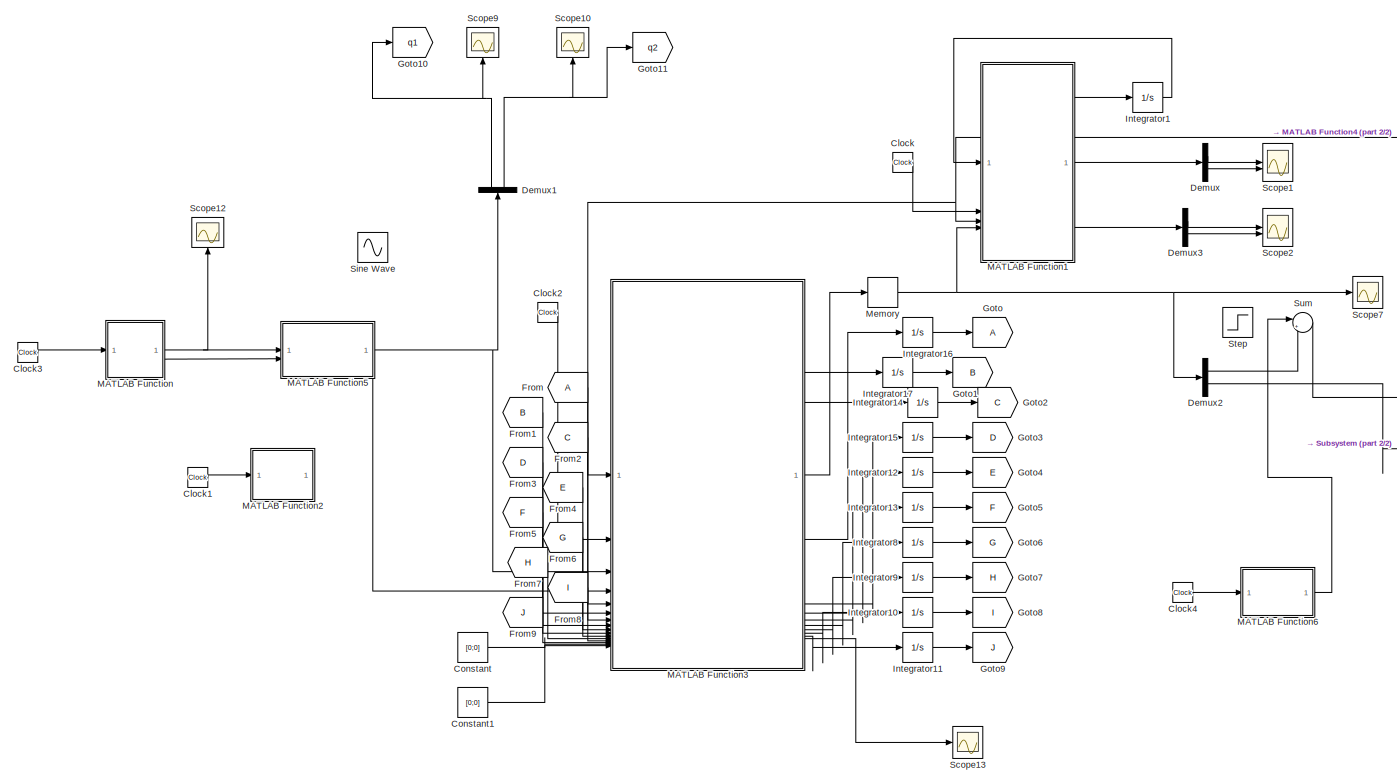
[diagram: root canvas - part 1/2, left side, full height]
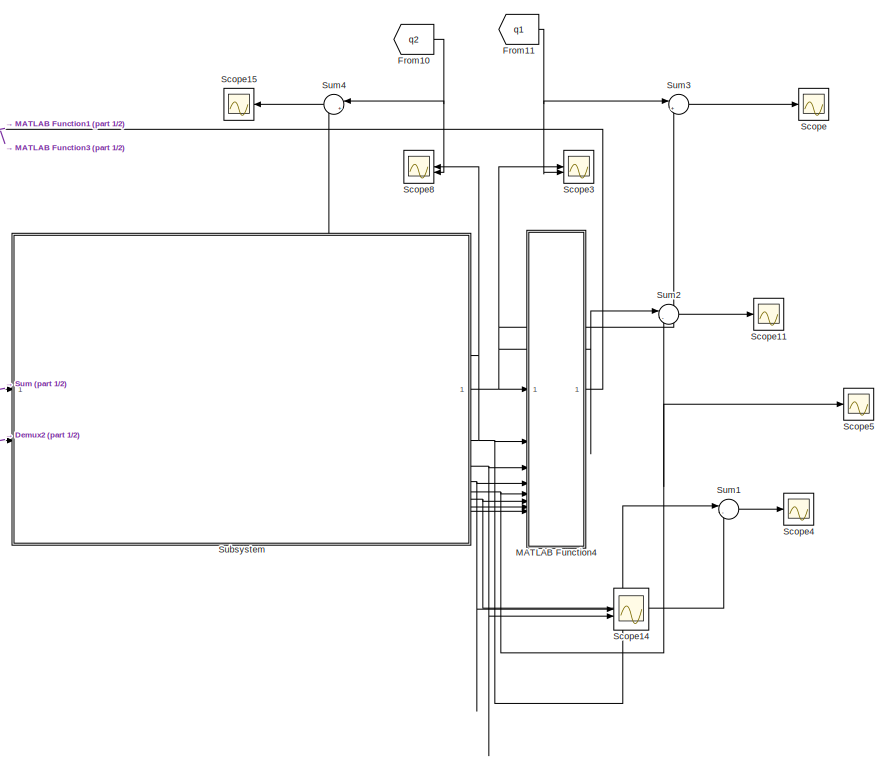
[diagram: root canvas - part 2/2, right side, full height]
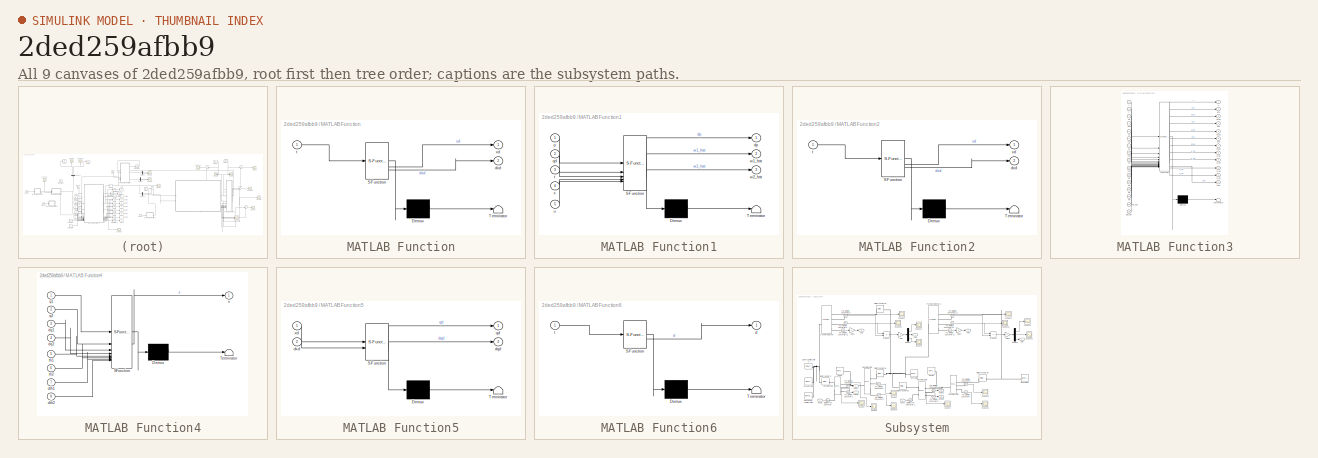
[diagram: thumbnail index - all 9 canvases of the model, root first then tree order]
MODEL slx_2ded259afbb9
KIND model
CONFIG AbsTol = auto
CONFIG EnableMultiTasking = off
CONFIG FixedStep = 1e-5
CONFIG MaxStep = 1e-4
CONFIG MinStep = auto
CONFIG RelTol = 1e-3
CONFIG SampleTimeConstraint = Unconstrained
CONFIG SolverName = ode45
CONFIG StartTime = 0.0
CONFIG StopTime = 10
BLOCK [Clock] Clock
BLOCK [Clock] Clock1
BLOCK [Clock] Clock2
BLOCK [Clock] Clock3
BLOCK [Clock] Clock4
BLOCK [Constant] Constant
  Value = [0;0]
BLOCK [Constant] Constant1
  Value = [0;0]
BLOCK [Demux] Demux
  Outputs = 2
BLOCK [Demux] Demux1
  NameLocation = right
  Outputs = 2
BLOCK [Demux] Demux2
  Outputs = 2
BLOCK [Demux] Demux3
  Outputs = 2
BLOCK [From] From
BLOCK [From] From1
  GotoTag = B
BLOCK [From] From10
  GotoTag = q2
BLOCK [From] From11
  GotoTag = q1
BLOCK [From] From2
  GotoTag = C
BLOCK [From] From3
  GotoTag = D
BLOCK [From] From4
  GotoTag = E
BLOCK [From] From5
  GotoTag = F
BLOCK [From] From6
  GotoTag = G
BLOCK [From] From7
  GotoTag = H
BLOCK [From] From8
  GotoTag = I
BLOCK [From] From9
  GotoTag = J
BLOCK [Goto] Goto
BLOCK [Goto] Goto1
  GotoTag = B
BLOCK [Goto] Goto10
  GotoTag = q1
BLOCK [Goto] Goto11
  GotoTag = q2
BLOCK [Goto] Goto2
  GotoTag = C
BLOCK [Goto] Goto3
  GotoTag = D
BLOCK [Goto] Goto4
  GotoTag = E
BLOCK [Goto] Goto5
  GotoTag = F
BLOCK [Goto] Goto6
  GotoTag = G
BLOCK [Goto] Goto7
  GotoTag = H
BLOCK [Goto] Goto8
  GotoTag = I
BLOCK [Goto] Goto9
  GotoTag = J
BLOCK [Integrator] Integrator1
  InitialCondition = [0; 0; 0; 0]
BLOCK [Integrator] Integrator10
  InitialCondition = [0; 0]
BLOCK [Integrator] Integrator11
  InitialCondition = [0; 0]
BLOCK [Integrator] Integrator12
  InitialCondition = [18.5625;135.5175]
BLOCK [Integrator] Integrator13
  InitialCondition = [0; 0]
BLOCK [Integrator] Integrator14
  InitialCondition = [0; 0]
BLOCK [Integrator] Integrator15
  InitialCondition = [0; 0]
BLOCK [Integrator] Integrator16
  InitialCondition = [0; 0]
BLOCK [Integrator] Integrator17
  InitialCondition = [0; 0]
BLOCK [Integrator] Integrator8
  InitialCondition = [0; 0]
BLOCK [Integrator] Integrator9
  InitialCondition = [0; 0]
BLOCK [SubSystem] MATLAB Function
  ErrorFcn = Stateflow.Translate.translate
  PermitHierarchicalResolution = ExplicitOnly
  SFBlockType = MATLAB Function
  TreatAsAtomicUnit = on
BLOCK [Demux] MATLAB Function/ Demux 
  Outputs = 1
BLOCK [S-Function] MATLAB Function/ SFunction 
  EnableBusSupport = on
  FunctionName = sf_sfun
  PortCounts = [1 3]
  SFcnIsStateOwnerBlock = off
  SFunctionDeploymentMode = off
  Tag = Stateflow S-Function 2
BLOCK [Terminator] MATLAB Function/ Terminator 
BLOCK [Outport] MATLAB Function/dxd
  Port = 2
BLOCK [Inport] MATLAB Function/t
BLOCK [Outport] MATLAB Function/xd
BLOCK [SubSystem] MATLAB Function1
  ErrorFcn = Stateflow.Translate.translate
  PermitHierarchicalResolution = ExplicitOnly
  SFBlockType = MATLAB Function
  TreatAsAtomicUnit = on
BLOCK [Demux] MATLAB Function1/ Demux 
  Outputs = 1
BLOCK [S-Function] MATLAB Function1/ SFunction 
  EnableBusSupport = on
  FunctionName = sf_sfun
  PortCounts = [5 4]
  SFcnIsStateOwnerBlock = off
  SFunctionDeploymentMode = off
  Tag = Stateflow S-Function 1
BLOCK [Terminator] MATLAB Function1/ Terminator 
BLOCK [Outport] MATLAB Function1/dp
BLOCK [Inport] MATLAB Function1/p
BLOCK [Inport] MATLAB Function1/qd
  Port = 2
BLOCK [Inport] MATLAB Function1/t
  Port = 3
BLOCK [Inport] MATLAB Function1/u
  Port = 5
BLOCK [Outport] MATLAB Function1/w1_hat
  Port = 2
BLOCK [Outport] MATLAB Function1/w2_hat
  Port = 3
BLOCK [Inport] MATLAB Function1/x
  Port = 4
BLOCK [SubSystem] MATLAB Function2
  ErrorFcn = Stateflow.Translate.translate
  PermitHierarchicalResolution = ExplicitOnly
  SFBlockType = MATLAB Function
  TreatAsAtomicUnit = on
BLOCK [Demux] MATLAB Function2/ Demux 
  Outputs = 1
BLOCK [S-Function] MATLAB Function2/ SFunction 
  EnableBusSupport = on
  FunctionName = sf_sfun
  PortCounts = [1 3]
  SFcnIsStateOwnerBlock = off
  SFunctionDeploymentMode = off
  Tag = Stateflow S-Function 3
BLOCK [Terminator] MATLAB Function2/ Terminator 
BLOCK [Outport] MATLAB Function2/dxd
  Port = 2
BLOCK [Inport] MATLAB Function2/t
BLOCK [Outport] MATLAB Function2/xd
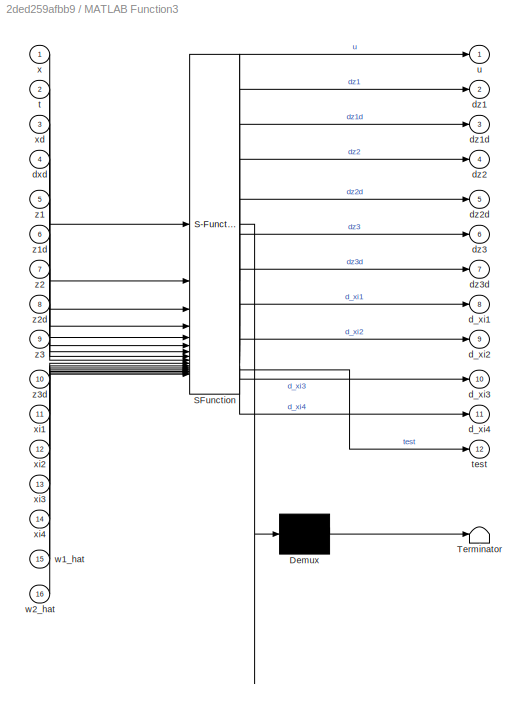
BLOCK [SubSystem] MATLAB Function3
  ErrorFcn = Stateflow.Translate.translate
  PermitHierarchicalResolution = ExplicitOnly
  SFBlockType = MATLAB Function
  TreatAsAtomicUnit = on
BLOCK [Demux] MATLAB Function3/ Demux 
  Outputs = 1
BLOCK [S-Function] MATLAB Function3/ SFunction 
  EnableBusSupport = on
  FunctionName = sf_sfun
  PortCounts = [16 13]
  SFcnIsStateOwnerBlock = off
  SFunctionDeploymentMode = off
  Tag = Stateflow S-Function 4
BLOCK [Terminator] MATLAB Function3/ Terminator 
BLOCK [Outport] MATLAB Function3/d_xi1
  Port = 8
BLOCK [Outport] MATLAB Function3/d_xi2
  Port = 9
BLOCK [Outport] MATLAB Function3/d_xi3
  Port = 10
BLOCK [Outport] MATLAB Function3/d_xi4
  Port = 11
BLOCK [Inport] MATLAB Function3/dxd
  Port = 4
BLOCK [Outport] MATLAB Function3/dz1
  Port = 2
BLOCK [Outport] MATLAB Function3/dz1d
  Port = 3
BLOCK [Outport] MATLAB Function3/dz2
  Port = 4
BLOCK [Outport] MATLAB Function3/dz2d
  Port = 5
BLOCK [Outport] MATLAB Function3/dz3
  Port = 6
BLOCK [Outport] MATLAB Function3/dz3d
  Port = 7
BLOCK [Inport] MATLAB Function3/t
  Port = 2
BLOCK [Outport] MATLAB Function3/test
  Port = 12
BLOCK [Outport] MATLAB Function3/u
BLOCK [Inport] MATLAB Function3/w1_hat
  Port = 15
BLOCK [Inport] MATLAB Function3/w2_hat
  Port = 16
BLOCK [Inport] MATLAB Function3/x
BLOCK [Inport] MATLAB Function3/xd
  Port = 3
BLOCK [Inport] MATLAB Function3/xi1
  Port = 11
BLOCK [Inport] MATLAB Function3/xi2
  Port = 12
BLOCK [Inport] MATLAB Function3/xi3
  Port = 13
BLOCK [Inport] MATLAB Function3/xi4
  Port = 14
BLOCK [Inport] MATLAB Function3/z1
  Port = 5
BLOCK [Inport] MATLAB Function3/z1d
  Port = 6
BLOCK [Inport] MATLAB Function3/z2
  Port = 7
BLOCK [Inport] MATLAB Function3/z2d
  Port = 8
BLOCK [Inport] MATLAB Function3/z3
  Port = 9
BLOCK [Inport] MATLAB Function3/z3d
  Port = 10
BLOCK [SubSystem] MATLAB Function4
  ErrorFcn = Stateflow.Translate.translate
  PermitHierarchicalResolution = ExplicitOnly
  SFBlockType = MATLAB Function
  TreatAsAtomicUnit = on
BLOCK [Demux] MATLAB Function4/ Demux 
  Outputs = 1
BLOCK [S-Function] MATLAB Function4/ SFunction 
  EnableBusSupport = on
  FunctionName = sf_sfun
  PortCounts = [8 2]
  SFcnIsStateOwnerBlock = off
  SFunctionDeploymentMode = off
  Tag = Stateflow S-Function 5
BLOCK [Terminator] MATLAB Function4/ Terminator 
BLOCK [Inport] MATLAB Function4/dq1
  Port = 3
BLOCK [Inport] MATLAB Function4/dq2
  Port = 4
BLOCK [Inport] MATLAB Function4/dth1
  Port = 7
BLOCK [Inport] MATLAB Function4/dth2
  Port = 8
BLOCK [Inport] MATLAB Function4/q1
BLOCK [Inport] MATLAB Function4/q2
  Port = 2
BLOCK [Inport] MATLAB Function4/th1
  Port = 5
BLOCK [Inport] MATLAB Function4/th2
  Port = 6
BLOCK [Outport] MATLAB Function4/x
BLOCK [SubSystem] MATLAB Function5
  ErrorFcn = Stateflow.Translate.translate
  PermitHierarchicalResolution = ExplicitOnly
  SFBlockType = MATLAB Function
  TreatAsAtomicUnit = on
BLOCK [Demux] MATLAB Function5/ Demux 
  Outputs = 1
BLOCK [S-Function] MATLAB Function5/ SFunction 
  EnableBusSupport = on
  FunctionName = sf_sfun
  PortCounts = [2 3]
  SFcnIsStateOwnerBlock = off
  SFunctionDeploymentMode = off
  Tag = Stateflow S-Function 6
BLOCK [Terminator] MATLAB Function5/ Terminator 
BLOCK [Outport] MATLAB Function5/dqd
  Port = 2
BLOCK [Inport] MATLAB Function5/dxd
  Port = 2
BLOCK [Outport] MATLAB Function5/qd
BLOCK [Inport] MATLAB Function5/xd
BLOCK [SubSystem] MATLAB Function6
  ErrorFcn = Stateflow.Translate.translate
  PermitHierarchicalResolution = ExplicitOnly
  SFBlockType = MATLAB Function
  TreatAsAtomicUnit = on
BLOCK [Demux] MATLAB Function6/ Demux 
  Outputs = 1
BLOCK [S-Function] MATLAB Function6/ SFunction 
  EnableBusSupport = on
  FunctionName = sf_sfun
  PortCounts = [1 2]
  SFcnIsStateOwnerBlock = off
  SFunctionDeploymentMode = off
  Tag = Stateflow S-Function 7
BLOCK [Terminator] MATLAB Function6/ Terminator 
BLOCK [Outport] MATLAB Function6/d
BLOCK [Inport] MATLAB Function6/t
BLOCK [Memory] Memory
BLOCK [Scope] Scope
  Floating = off
  NumInputPorts = 1
  ScopeSpecificationString = Simulink.scopes.TimeScopeBlockCfg('CurrentConfiguration', extmgr.ConfigurationSet(extmgr.Configuration('Core','General UI',true),extmgr.Configuration('Core','Source UI',true),extmgr.Configuration('Sources','WiredSimulink',true,'DataLoggingVariableName','best','DataLogging',true,'DataLoggingSaveFormat','StructureWithTime'),extmgr.Configuration('Visuals','Time Domain',true,'SerializedDisplays',{stru...<+1621ch>
BLOCK [Scope] Scope1
  Floating = off
  NumInputPorts = 2
  ScopeSpecificationString = Simulink.scopes.TimeScopeBlockCfg('CurrentConfiguration', extmgr.ConfigurationSet(extmgr.Configuration('Core','General UI',true),extmgr.Configuration('Core','Source UI',true),extmgr.Configuration('Sources','WiredSimulink',true,'DataLoggingVariableName','ScopeData6'),extmgr.Configuration('Visuals','Time Domain',true,'SerializedDisplays',{struct('MinYLimReal','-94.07248','MaxYLimReal','99.78454','YL...<+1583ch>
BLOCK [Scope] Scope10
  Floating = off
  NameLocation = right
  NumInputPorts = 1
  ScopeSpecificationString = Simulink.scopes.TimeScopeBlockCfg('CurrentConfiguration', extmgr.ConfigurationSet(extmgr.Configuration('Core','General UI',true),extmgr.Configuration('Core','Source UI',true),extmgr.Configuration('Sources','WiredSimulink',true,'DataLoggingVariableName','ScopeData4'),extmgr.Configuration('Visuals','Time Domain',true,'SerializedDisplays',{struct('MinYLimReal','-0.88374','MaxYLimReal','1.27164','YLab...<+1555ch>
BLOCK [Scope] Scope11
  Floating = off
  NumInputPorts = 1
  ScopeSpecificationString = Simulink.scopes.TimeScopeBlockCfg('CurrentConfiguration', extmgr.ConfigurationSet(extmgr.Configuration('Core','General UI',true),extmgr.Configuration('Core','Source UI',true),extmgr.Configuration('Sources','WiredSimulink',true,'DataLoggingVariableName','ScopeData5'),extmgr.Configuration('Visuals','Time Domain',true,'SerializedDisplays',{struct('MinYLimReal','-619.12287','MaxYLimReal','665.49509','...<+1552ch>
BLOCK [Scope] Scope12
  Floating = off
  NameLocation = right
  NumInputPorts = 1
  ScopeSpecificationString = Simulink.scopes.TimeScopeBlockCfg('CurrentConfiguration', extmgr.ConfigurationSet(extmgr.Configuration('Core','General UI',true),extmgr.Configuration('Core','Source UI',true),extmgr.Configuration('Sources','WiredSimulink',true,'DataLoggingVariableName','ScopeData4'),extmgr.Configuration('Visuals','Time Domain',true,'SerializedDisplays',{struct('MinYLimReal','-0.375','MaxYLimReal','3.375','YLabelRe...<+1578ch>
BLOCK [Scope] Scope13
  Floating = off
  NumInputPorts = 1
  ScopeSpecificationString = Simulink.scopes.TimeScopeBlockCfg('CurrentConfiguration', extmgr.ConfigurationSet(extmgr.Configuration('Core','General UI',true),extmgr.Configuration('Core','Source UI',true),extmgr.Configuration('Sources','WiredSimulink',true,'DataLoggingVariableName','ScopeData5'),extmgr.Configuration('Visuals','Time Domain',true,'SerializedDisplays',{struct('MinYLimReal','-74.88973','MaxYLimReal','74.29753','YL...<+1628ch>
BLOCK [Scope] Scope14
  Floating = off
  NumInputPorts = 2
  ScopeSpecificationString = Simulink.scopes.TimeScopeBlockCfg('CurrentConfiguration', extmgr.ConfigurationSet(extmgr.Configuration('Core','General UI',true),extmgr.Configuration('Core','Source UI',true),extmgr.Configuration('Sources','WiredSimulink',true,'DataLoggingVariableName','ScopeData6'),extmgr.Configuration('Visuals','Time Domain',true,'SerializedDisplays',{struct('MinYLimReal','-0.3372','MaxYLimReal','0.50449','YLabe...<+1570ch>
BLOCK [Scope] Scope15
  Floating = off
  NameLocation = top
  NumInputPorts = 1
  ScopeSpecificationString = Simulink.scopes.TimeScopeBlockCfg('CurrentConfiguration', extmgr.ConfigurationSet(extmgr.Configuration('Core','General UI',true),extmgr.Configuration('Core','Source UI',true),extmgr.Configuration('Sources','WiredSimulink',true,'DataLoggingVariableName','best2','DataLogging',true,'DataLoggingSaveFormat','StructureWithTime'),extmgr.Configuration('Visuals','Time Domain',true,'SerializedDisplays',{str...<+1608ch>
BLOCK [Scope] Scope2
  Floating = off
  NumInputPorts = 2
  ScopeSpecificationString = Simulink.scopes.TimeScopeBlockCfg('CurrentConfiguration', extmgr.ConfigurationSet(extmgr.Configuration('Core','General UI',true),extmgr.Configuration('Core','Source UI',true),extmgr.Configuration('Sources','WiredSimulink',true,'DataLoggingVariableName','ScopeData7'),extmgr.Configuration('Visuals','Time Domain',true,'SerializedDisplays',{struct('MinYLimReal','-6451.33234','MaxYLimReal','12529.69531...<+1578ch>
BLOCK [Scope] Scope3
  Floating = off
  NumInputPorts = 2
  ScopeSpecificationString = Simulink.scopes.TimeScopeBlockCfg('CurrentConfiguration', extmgr.ConfigurationSet(extmgr.Configuration('Core','General UI',true),extmgr.Configuration('Core','Source UI',true),extmgr.Configuration('Sources','WiredSimulink',true,'DataLoggingVariableName','ScopeData1'),extmgr.Configuration('Visuals','Time Domain',true,'SerializedDisplays',{struct('MinYLimReal','-1.33339','MaxYLimReal','1.32966','YLab...<+1556ch>
BLOCK [Scope] Scope4
  Floating = off
  NumInputPorts = 1
  ScopeSpecificationString = Simulink.scopes.TimeScopeBlockCfg('CurrentConfiguration', extmgr.ConfigurationSet(extmgr.Configuration('Core','General UI',true),extmgr.Configuration('Core','Source UI',true),extmgr.Configuration('Sources','WiredSimulink',true,'DataLoggingVariableName','ScopeData1'),extmgr.Configuration('Visuals','Time Domain',true,'SerializedDisplays',{struct('MinYLimReal','-0.07716','MaxYLimReal','0.3138','YLabe...<+1547ch>
BLOCK [Scope] Scope5
  Floating = off
  NumInputPorts = 1
  ScopeSpecificationString = Simulink.scopes.TimeScopeBlockCfg('CurrentConfiguration', extmgr.ConfigurationSet(extmgr.Configuration('Core','General UI',true),extmgr.Configuration('Core','Source UI',true),extmgr.Configuration('Sources','WiredSimulink',true,'DataLoggingVariableName','ScopeData2'),extmgr.Configuration('Visuals','Time Domain',true,'SerializedDisplays',{struct('MinYLimReal','-1.15078','MaxYLimReal','1.60416','YLab...<+1558ch>
BLOCK [Scope] Scope7
  Floating = off
  NumInputPorts = 1
  ScopeSpecificationString = Simulink.scopes.TimeScopeBlockCfg('CurrentConfiguration', extmgr.ConfigurationSet(extmgr.Configuration('Core','General UI',true),extmgr.Configuration('Core','Source UI',true),extmgr.Configuration('Sources','WiredSimulink',true,'DataLoggingVariableName','ScopeData8'),extmgr.Configuration('Visuals','Time Domain',true,'SerializedDisplays',{struct('MinYLimReal','-5408.44137','MaxYLimReal','6031.52926'...<+1588ch>
BLOCK [Scope] Scope8
  Floating = off
  NameLocation = top
  NumInputPorts = 2
  ScopeSpecificationString = Simulink.scopes.TimeScopeBlockCfg('CurrentConfiguration', extmgr.ConfigurationSet(extmgr.Configuration('Core','General UI',true),extmgr.Configuration('Core','Source UI',true),extmgr.Configuration('Sources','WiredSimulink',true,'DataLoggingVariableName','ScopeData2'),extmgr.Configuration('Visuals','Time Domain',true,'SerializedDisplays',{struct('MinYLimReal','-0.18996','MaxYLimReal','1.70906','YLab...<+1569ch>
BLOCK [Scope] Scope9
  Floating = off
  NameLocation = right
  NumInputPorts = 1
  ScopeSpecificationString = Simulink.scopes.TimeScopeBlockCfg('CurrentConfiguration', extmgr.ConfigurationSet(extmgr.Configuration('Core','General UI',true),extmgr.Configuration('Core','Source UI',true),extmgr.Configuration('Sources','WiredSimulink',true,'DataLoggingVariableName','ScopeData3'),extmgr.Configuration('Visuals','Time Domain',true,'SerializedDisplays',{struct('MinYLimReal','-1.25','MaxYLimReal','1.25','YLabelReal...<+1524ch>
BLOCK [Sin] Sine Wave
  Amplitude = 5
  Frequency = 100
  SampleTime = 0
BLOCK [Step] Step
  After = 5
  SampleTime = 0
  Time = 0
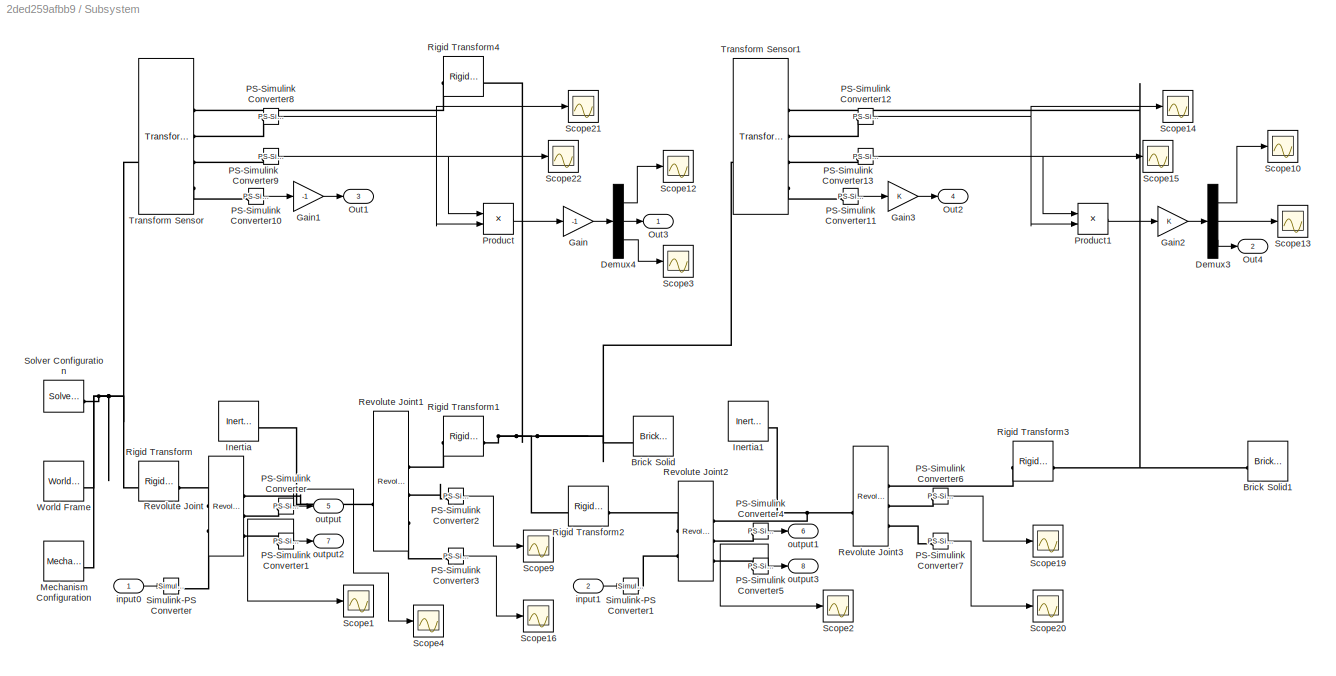
BLOCK [SubSystem] Subsystem
BLOCK [Reference] Subsystem/Brick Solid  REF=sm_lib/Body Elements/Brick Solid
  NameLocation = right
  SourceBlock = sm_lib/Body Elements/Brick Solid
  SourceType = Brick Solid
BLOCK [Reference] Subsystem/Brick Solid1  REF=sm_lib/Body Elements/Brick Solid
  NameLocation = right
  SourceBlock = sm_lib/Body Elements/Brick Solid
  SourceType = Brick Solid
BLOCK [Demux] Subsystem/Demux3
  Outputs = 3
BLOCK [Demux] Subsystem/Demux4
  Outputs = 3
BLOCK [Gain] Subsystem/Gain
  Gain = -1
BLOCK [Gain] Subsystem/Gain1
  Gain = -1
BLOCK [Gain] Subsystem/Gain2
BLOCK [Gain] Subsystem/Gain3
BLOCK [Reference] Subsystem/Inertia  REF=sm_lib/Body Elements/Inertia
  SourceBlock = sm_lib/Body Elements/Inertia
  SourceType = Inertia
BLOCK [Reference] Subsystem/Inertia1  REF=sm_lib/Body Elements/Inertia
  SourceBlock = sm_lib/Body Elements/Inertia
  SourceType = Inertia
BLOCK [Reference] Subsystem/Mechanism Configuration  REF=sm_lib/Utilities/Mechanism
Configuration
  SourceBlock = sm_lib/Utilities/Mechanism\nConfiguration
  SourceType = Mechanism\nConfiguration
BLOCK [Outport] Subsystem/Out1
  Port = 3
BLOCK [Outport] Subsystem/Out2
  Port = 4
BLOCK [Outport] Subsystem/Out3
BLOCK [Outport] Subsystem/Out4
  Port = 2
BLOCK [Reference] Subsystem/PS-Simulink Converter  REF=nesl_utility/PS-Simulink
Converter
  SourceBlock = nesl_utility/PS-Simulink\nConverter
  SourceType = PS-Simulink\nConverter
BLOCK [Reference] Subsystem/PS-Simulink Converter1  REF=nesl_utility/PS-Simulink
Converter
  SourceBlock = nesl_utility/PS-Simulink\nConverter
  SourceType = PS-Simulink\nConverter
BLOCK [Reference] Subsystem/PS-Simulink Converter10  REF=nesl_utility/PS-Simulink
Converter
  SourceBlock = nesl_utility/PS-Simulink\nConverter
  SourceType = PS-Simulink\nConverter
BLOCK [Reference] Subsystem/PS-Simulink Converter11  REF=nesl_utility/PS-Simulink
Converter
  SourceBlock = nesl_utility/PS-Simulink\nConverter
  SourceType = PS-Simulink\nConverter
BLOCK [Reference] Subsystem/PS-Simulink Converter12  REF=nesl_utility/PS-Simulink
Converter
  SourceBlock = nesl_utility/PS-Simulink\nConverter
  SourceType = PS-Simulink\nConverter
BLOCK [Reference] Subsystem/PS-Simulink Converter13  REF=nesl_utility/PS-Simulink
Converter
  SourceBlock = nesl_utility/PS-Simulink\nConverter
  SourceType = PS-Simulink\nConverter
BLOCK [Reference] Subsystem/PS-Simulink Converter2  REF=nesl_utility/PS-Simulink
Converter
  SourceBlock = nesl_utility/PS-Simulink\nConverter
  SourceType = PS-Simulink\nConverter
BLOCK [Reference] Subsystem/PS-Simulink Converter3  REF=nesl_utility/PS-Simulink
Converter
  SourceBlock = nesl_utility/PS-Simulink\nConverter
  SourceType = PS-Simulink\nConverter
BLOCK [Reference] Subsystem/PS-Simulink Converter4  REF=nesl_utility/PS-Simulink
Converter
  SourceBlock = nesl_utility/PS-Simulink\nConverter
  SourceType = PS-Simulink\nConverter
BLOCK [Reference] Subsystem/PS-Simulink Converter5  REF=nesl_utility/PS-Simulink
Converter
  SourceBlock = nesl_utility/PS-Simulink\nConverter
  SourceType = PS-Simulink\nConverter
BLOCK [Reference] Subsystem/PS-Simulink Converter6  REF=nesl_utility/PS-Simulink
Converter
  SourceBlock = nesl_utility/PS-Simulink\nConverter
  SourceType = PS-Simulink\nConverter
BLOCK [Reference] Subsystem/PS-Simulink Converter7  REF=nesl_utility/PS-Simulink
Converter
  SourceBlock = nesl_utility/PS-Simulink\nConverter
  SourceType = PS-Simulink\nConverter
BLOCK [Reference] Subsystem/PS-Simulink Converter8  REF=nesl_utility/PS-Simulink
Converter
  SourceBlock = nesl_utility/PS-Simulink\nConverter
  SourceType = PS-Simulink\nConverter
BLOCK [Reference] Subsystem/PS-Simulink Converter9  REF=nesl_utility/PS-Simulink
Converter
  SourceBlock = nesl_utility/PS-Simulink\nConverter
  SourceType = PS-Simulink\nConverter
BLOCK [Product] Subsystem/Product
BLOCK [Product] Subsystem/Product1
BLOCK [Reference] Subsystem/Revolute Joint  REF=sm_lib/Joints/Revolute Joint
  SourceBlock = sm_lib/Joints/Revolute Joint
  SourceType = Revolute Joint
BLOCK [Reference] Subsystem/Revolute Joint1  REF=sm_lib/Joints/Revolute Joint
  SourceBlock = sm_lib/Joints/Revolute Joint
  SourceType = Revolute Joint
BLOCK [Reference] Subsystem/Revolute Joint2  REF=sm_lib/Joints/Revolute Joint
  SourceBlock = sm_lib/Joints/Revolute Joint
  SourceType = Revolute Joint
BLOCK [Reference] Subsystem/Revolute Joint3  REF=sm_lib/Joints/Revolute Joint
  SourceBlock = sm_lib/Joints/Revolute Joint
  SourceType = Revolute Joint
BLOCK [Reference] Subsystem/Rigid Transform  REF=sm_lib/Frames and
Transforms/Rigid
Transform
  SourceBlock = sm_lib/Frames and\nTransforms/Rigid\nTransform
  SourceType = Rigid\nTransform
BLOCK [Reference] Subsystem/Rigid Transform1  REF=sm_lib/Frames and
Transforms/Rigid
Transform
  SourceBlock = sm_lib/Frames and\nTransforms/Rigid\nTransform
  SourceType = Rigid\nTransform
BLOCK [Reference] Subsystem/Rigid Transform2  REF=sm_lib/Frames and
Transforms/Rigid
Transform
  SourceBlock = sm_lib/Frames and\nTransforms/Rigid\nTransform
  SourceType = Rigid\nTransform
BLOCK [Reference] Subsystem/Rigid Transform3  REF=sm_lib/Frames and
Transforms/Rigid
Transform
  SourceBlock = sm_lib/Frames and\nTransforms/Rigid\nTransform
  SourceType = Rigid\nTransform
BLOCK [Reference] Subsystem/Rigid Transform4  REF=sm_lib/Frames and
Transforms/Rigid
Transform
  NameLocation = top
  SourceBlock = sm_lib/Frames and\nTransforms/Rigid\nTransform
  SourceType = Rigid\nTransform
BLOCK [Scope] Subsystem/Scope1
  Floating = off
  NumInputPorts = 1
  ScopeSpecificationString = Simulink.scopes.TimeScopeBlockCfg('CurrentConfiguration', extmgr.ConfigurationSet(extmgr.Configuration('Core','General UI',true),extmgr.Configuration('Core','Source UI',true),extmgr.Configuration('Sources','WiredSimulink',true,'DataLoggingVariableName','ScopeData5'),extmgr.Configuration('Visuals','Time Domain',true,'SerializedDisplays',{struct('MinYLimReal','-56.91703','MaxYLimReal','39.85112','YL...<+1575ch>
BLOCK [Scope] Subsystem/Scope10
  Floating = off
  NumInputPorts = 1
  ScopeSpecificationString = Simulink.scopes.TimeScopeBlockCfg('CurrentConfiguration', extmgr.ConfigurationSet(extmgr.Configuration('Core','General UI',true),extmgr.Configuration('Core','Source UI',true),extmgr.Configuration('Sources','WiredSimulink',true,'DataLoggingVariableName','ScopeData10'),extmgr.Configuration('Visuals','Time Domain',true,'SerializedDisplays',{struct('MinYLimReal','-1.00000','MaxYLimReal','1.00000','YLa...<+1563ch>
BLOCK [Scope] Subsystem/Scope12
  Floating = off
  NumInputPorts = 1
  ScopeSpecificationString = Simulink.scopes.TimeScopeBlockCfg('CurrentConfiguration', extmgr.ConfigurationSet(extmgr.Configuration('Core','General UI',true),extmgr.Configuration('Core','Source UI',true),extmgr.Configuration('Sources','WiredSimulink',true,'DataLoggingVariableName','ScopeData12'),extmgr.Configuration('Visuals','Time Domain',true,'SerializedDisplays',{struct('MinYLimReal','-0.94772','MaxYLimReal','0.10533','YLa...<+1536ch>
BLOCK [Scope] Subsystem/Scope13
  Floating = off
  NumInputPorts = 1
  ScopeSpecificationString = Simulink.scopes.TimeScopeBlockCfg('CurrentConfiguration', extmgr.ConfigurationSet(extmgr.Configuration('Core','General UI',true),extmgr.Configuration('Core','Source UI',true),extmgr.Configuration('Sources','WiredSimulink',true,'DataLoggingVariableName','ScopeData13'),extmgr.Configuration('Visuals','Time Domain',true,'SerializedDisplays',{struct('MinYLimReal','-1.00000','MaxYLimReal','1.00000','YLa...<+1563ch>
BLOCK [Scope] Subsystem/Scope14
  Floating = off
  NumInputPorts = 1
  ScopeSpecificationString = Simulink.scopes.TimeScopeBlockCfg('CurrentConfiguration', extmgr.ConfigurationSet(extmgr.Configuration('Core','General UI',true),extmgr.Configuration('Core','Source UI',true),extmgr.Configuration('Sources','WiredSimulink',true,'DataLoggingVariableName','ScopeData14'),extmgr.Configuration('Visuals','Time Domain',true,'SerializedDisplays',{struct('MinYLimReal','-0.06235','MaxYLimReal','0.56118','YLa...<+1539ch>
BLOCK [Scope] Subsystem/Scope15
  Floating = off
  NumInputPorts = 1
  ScopeSpecificationString = Simulink.scopes.TimeScopeBlockCfg('CurrentConfiguration', extmgr.ConfigurationSet(extmgr.Configuration('Core','General UI',true),extmgr.Configuration('Core','Source UI',true),extmgr.Configuration('Sources','WiredSimulink',true,'DataLoggingVariableName','ScopeData15'),extmgr.Configuration('Visuals','Time Domain',true,'SerializedDisplays',{struct('MinYLimReal','-1.25','MaxYLimReal','1.25','YLabelRea...<+1580ch>
BLOCK [Scope] Subsystem/Scope16
  Floating = off
  NumInputPorts = 1
  ScopeSpecificationString = Simulink.scopes.TimeScopeBlockCfg('CurrentConfiguration', extmgr.ConfigurationSet(extmgr.Configuration('Core','General UI',true),extmgr.Configuration('Core','Source UI',true),extmgr.Configuration('Sources','WiredSimulink',true,'DataLoggingVariableName','ScopeData3'),extmgr.Configuration('Visuals','Time Domain',true,'SerializedDisplays',{struct('MinYLimReal','-44.2935','MaxYLimReal','97.0416','YLab...<+1512ch>
BLOCK [Scope] Subsystem/Scope19
  Floating = off
  NumInputPorts = 1
  ScopeSpecificationString = Simulink.scopes.TimeScopeBlockCfg('CurrentConfiguration', extmgr.ConfigurationSet(extmgr.Configuration('Core','General UI',true),extmgr.Configuration('Core','Source UI',true),extmgr.Configuration('Sources','WiredSimulink',true,'DataLoggingVariableName','ScopeData6'),extmgr.Configuration('Visuals','Time Domain',true,'SerializedDisplays',{struct('MinYLimReal','-0.33392','MaxYLimReal','0.06202','YLab...<+1550ch>
BLOCK [Scope] Subsystem/Scope2
  Floating = off
  NumInputPorts = 1
  ScopeSpecificationString = Simulink.scopes.TimeScopeBlockCfg('CurrentConfiguration', extmgr.ConfigurationSet(extmgr.Configuration('Core','General UI',true),extmgr.Configuration('Core','Source UI',true),extmgr.Configuration('Sources','WiredSimulink',true,'DataLoggingVariableName','ScopeData6'),extmgr.Configuration('Visuals','Time Domain',true,'SerializedDisplays',{struct('MinYLimReal','-33.04325','MaxYLimReal','104.31676','Y...<+1591ch>
BLOCK [Scope] Subsystem/Scope20
  Floating = off
  NumInputPorts = 1
  ScopeSpecificationString = Simulink.scopes.TimeScopeBlockCfg('CurrentConfiguration', extmgr.ConfigurationSet(extmgr.Configuration('Core','General UI',true),extmgr.Configuration('Core','Source UI',true),extmgr.Configuration('Sources','WiredSimulink',true,'DataLoggingVariableName','ScopeData7'),extmgr.Configuration('Visuals','Time Domain',true,'SerializedDisplays',{struct('MinYLimReal','-0.2693','MaxYLimReal','0.24465','YLabe...<+1553ch>
BLOCK [Scope] Subsystem/Scope21
  Floating = off
  NumInputPorts = 1
  ScopeSpecificationString = Simulink.scopes.TimeScopeBlockCfg('CurrentConfiguration', extmgr.ConfigurationSet(extmgr.Configuration('Core','General UI',true),extmgr.Configuration('Core','Source UI',true),extmgr.Configuration('Sources','WiredSimulink',true,'DataLoggingVariableName','ScopeData8'),extmgr.Configuration('Visuals','Time Domain',true,'SerializedDisplays',{struct('MinYLimReal','-0.07233','MaxYLimReal','0.65094','YLab...<+1563ch>
BLOCK [Scope] Subsystem/Scope22
  Floating = off
  NumInputPorts = 1
  ScopeSpecificationString = Simulink.scopes.TimeScopeBlockCfg('CurrentConfiguration', extmgr.ConfigurationSet(extmgr.Configuration('Core','General UI',true),extmgr.Configuration('Core','Source UI',true),extmgr.Configuration('Sources','WiredSimulink',true,'DataLoggingVariableName','ScopeData9'),extmgr.Configuration('Visuals','Time Domain',true,'SerializedDisplays',{struct('MinYLimReal','-1.25','MaxYLimReal','1.25','YLabelReal...<+1588ch>
BLOCK [Scope] Subsystem/Scope3
  Floating = off
  NumInputPorts = 1
  ScopeSpecificationString = Simulink.scopes.TimeScopeBlockCfg('CurrentConfiguration', extmgr.ConfigurationSet(extmgr.Configuration('Core','General UI',true),extmgr.Configuration('Core','Source UI',true),extmgr.Configuration('Sources','WiredSimulink',true,'DataLoggingVariableName','ScopeData11'),extmgr.Configuration('Visuals','Time Domain',true,'SerializedDisplays',{struct('MinYLimReal','-0.94772','MaxYLimReal','0.10533','YLa...<+1536ch>
BLOCK [Scope] Subsystem/Scope4
  Floating = off
  NumInputPorts = 1
  ScopeSpecificationString = Simulink.scopes.TimeScopeBlockCfg('CurrentConfiguration', extmgr.ConfigurationSet(extmgr.Configuration('Core','General UI',true),extmgr.Configuration('Core','Source UI',true),extmgr.Configuration('Sources','WiredSimulink',true,'DataLoggingVariableName','ScopeData7'),extmgr.Configuration('Visuals','Time Domain',true,'SerializedDisplays',{struct('MinYLimReal','-0.71808','MaxYLimReal','1.52278','YLab...<+1568ch>
BLOCK [Scope] Subsystem/Scope9
  Floating = off
  NumInputPorts = 1
  ScopeSpecificationString = Simulink.scopes.TimeScopeBlockCfg('CurrentConfiguration', extmgr.ConfigurationSet(extmgr.Configuration('Core','General UI',true),extmgr.Configuration('Core','Source UI',true),extmgr.Configuration('Sources','WiredSimulink',true,'DataLoggingVariableName','ScopeData2'),extmgr.Configuration('Visuals','Time Domain',true,'SerializedDisplays',{struct('MinYLimReal','-0.56775','MaxYLimReal','0.2042','YLabe...<+1535ch>
BLOCK [Reference] Subsystem/Simulink-PS Converter  REF=nesl_utility/Simulink-PS
Converter
  SourceBlock = nesl_utility/Simulink-PS\nConverter
  SourceType = Simulink-PS\nConverter
BLOCK [Reference] Subsystem/Simulink-PS Converter1  REF=nesl_utility/Simulink-PS
Converter
  SourceBlock = nesl_utility/Simulink-PS\nConverter
  SourceType = Simulink-PS\nConverter
BLOCK [Reference] Subsystem/Solver Configuration  REF=nesl_utility/Solver
Configuration
  SourceBlock = nesl_utility/Solver\nConfiguration
  SourceType = Solver\nConfiguration
BLOCK [Reference] Subsystem/Transform Sensor  REF=sm_lib/Frames and
Transforms/Transform
Sensor
  SourceBlock = sm_lib/Frames and\nTransforms/Transform\nSensor
  SourceType = Transform\nSensor
BLOCK [Reference] Subsystem/Transform Sensor1  REF=sm_lib/Frames and
Transforms/Transform
Sensor
  SourceBlock = sm_lib/Frames and\nTransforms/Transform\nSensor
  SourceType = Transform\nSensor
BLOCK [Reference] Subsystem/World Frame  REF=sm_lib/Frames and
Transforms/World Frame
  SourceBlock = sm_lib/Frames and\nTransforms/World Frame
  SourceType = World Frame
BLOCK [Inport] Subsystem/input0
BLOCK [Inport] Subsystem/input1
  Port = 2
BLOCK [Outport] Subsystem/output
  Port = 5
BLOCK [Outport] Subsystem/output1
  Port = 6
BLOCK [Outport] Subsystem/output2
  Port = 7
BLOCK [Outport] Subsystem/output3
  Port = 8
BLOCK [Sum] Sum
  Inputs = |++
BLOCK [Sum] Sum1
  Inputs = |-+
BLOCK [Sum] Sum2
  Inputs = |-+
BLOCK [Sum] Sum3
  Inputs = |+-
BLOCK [Sum] Sum4
  Inputs = |+-
  NameLocation = top
LINE Clock1:1 -> MATLAB Function2:1
LINE Clock2:1 -> MATLAB Function3:2
LINE Clock3:1 -> MATLAB Function:1
LINE Clock4:1 -> MATLAB Function6:1
LINE Clock:1 -> MATLAB Function1:3
LINE Constant1:1 -> MATLAB Function3:16
LINE Constant:1 -> MATLAB Function3:15
NET Demux1:1 -> Goto10:1, Scope9:1
NET Demux1:2 -> Goto11:1, Scope10:1
LINE Demux2:1 -> Sum:2
LINE Demux2:2 -> Subsystem:2
LINE Demux3:1 -> Scope2:1
LINE Demux3:2 -> Scope2:2
LINE Demux:1 -> Scope1:1
LINE Demux:2 -> Scope1:2
NET From10:1 -> Scope8:2, Sum4:1
NET From11:1 -> Scope3:2, Sum3:1
LINE From1:1 -> MATLAB Function3:6
LINE From2:1 -> MATLAB Function3:7
LINE From3:1 -> MATLAB Function3:8
LINE From4:1 -> MATLAB Function3:9
LINE From5:1 -> MATLAB Function3:10
LINE From6:1 -> MATLAB Function3:11
LINE From7:1 -> MATLAB Function3:12
LINE From8:1 -> MATLAB Function3:13
LINE From9:1 -> MATLAB Function3:14
LINE From:1 -> MATLAB Function3:5
LINE Integrator10:1 -> Goto8:1
LINE Integrator11:1 -> Goto9:1
LINE Integrator12:1 -> Goto4:1
LINE Integrator13:1 -> Goto5:1
LINE Integrator14:1 -> Goto2:1
LINE Integrator15:1 -> Goto3:1
LINE Integrator16:1 -> Goto:1
LINE Integrator17:1 -> Goto1:1
LINE Integrator1:1 -> MATLAB Function1:1
LINE Integrator8:1 -> Goto6:1
LINE Integrator9:1 -> Goto7:1
LINE MATLAB Function1:1 -> Integrator1:1
LINE MATLAB Function1:2 -> Demux:1
LINE MATLAB Function1:3 -> Demux3:1
LINE MATLAB Function3:1 -> Memory:1
LINE MATLAB Function3:10 -> Integrator10:1
LINE MATLAB Function3:11 -> Integrator11:1
LINE MATLAB Function3:12 -> Scope13:1
LINE MATLAB Function3:2 -> Integrator16:1
LINE MATLAB Function3:3 -> Integrator17:1
LINE MATLAB Function3:4 -> Integrator14:1
LINE MATLAB Function3:5 -> Integrator15:1
LINE MATLAB Function3:6 -> Integrator12:1
LINE MATLAB Function3:7 -> Integrator13:1
LINE MATLAB Function3:8 -> Integrator8:1
LINE MATLAB Function3:9 -> Integrator9:1
NET MATLAB Function4:1 -> MATLAB Function1:4, MATLAB Function3:1
NET MATLAB Function5:1 -> Demux1:1, MATLAB Function3:3
LINE MATLAB Function5:2 -> MATLAB Function3:4
LINE MATLAB Function6:1 -> Sum:1
NET MATLAB Function:1 -> MATLAB Function5:1, Scope12:1
LINE MATLAB Function:2 -> MATLAB Function5:2
NET Memory:1 -> Demux2:1, MATLAB Function1:5, Scope7:1
LINE Subsystem/Demux3:1 -> Subsystem/Scope10:1
LINE Subsystem/Demux3:2 -> Subsystem/Scope13:1
LINE Subsystem/Demux3:3 -> Subsystem/Out4:1
LINE Subsystem/Demux4:1 -> Subsystem/Scope12:1
LINE Subsystem/Demux4:2 -> Subsystem/Out3:1
LINE Subsystem/Demux4:3 -> Subsystem/Scope3:1
LINE Subsystem/Gain1:1 -> Subsystem/Out1:1
LINE Subsystem/Gain2:1 -> Subsystem/Demux3:1
LINE Subsystem/Gain3:1 -> Subsystem/Out2:1
LINE Subsystem/Gain:1 -> Subsystem/Demux4:1
LINE Subsystem/PS-Simulink Converter10:1 -> Subsystem/Gain1:1
LINE Subsystem/PS-Simulink Converter11:1 -> Subsystem/Gain3:1
NET Subsystem/PS-Simulink Converter12:1 -> Subsystem/Product1:2, Subsystem/Scope14:1
NET Subsystem/PS-Simulink Converter13:1 -> Subsystem/Product1:1, Subsystem/Scope15:1
NET Subsystem/PS-Simulink Converter1:1 -> Subsystem/Scope1:1, Subsystem/output2:1
LINE Subsystem/PS-Simulink Converter2:1 -> Subsystem/Scope9:1
LINE Subsystem/PS-Simulink Converter3:1 -> Subsystem/Scope16:1
LINE Subsystem/PS-Simulink Converter4:1 -> Subsystem/output1:1
NET Subsystem/PS-Simulink Converter5:1 -> Subsystem/Scope2:1, Subsystem/output3:1
LINE Subsystem/PS-Simulink Converter6:1 -> Subsystem/Scope19:1
LINE Subsystem/PS-Simulink Converter7:1 -> Subsystem/Scope20:1
NET Subsystem/PS-Simulink Converter8:1 -> Subsystem/Product:2, Subsystem/Scope21:1
NET Subsystem/PS-Simulink Converter9:1 -> Subsystem/Product:1, Subsystem/Scope22:1
NET Subsystem/PS-Simulink Converter:1 -> Subsystem/Scope4:1, Subsystem/output:1
LINE Subsystem/Product1:1 -> Subsystem/Gain2:1
LINE Subsystem/Product:1 -> Subsystem/Gain:1
LINE Subsystem/input0:1 -> Subsystem/Simulink-PS Converter:1
LINE Subsystem/input1:1 -> Subsystem/Simulink-PS Converter1:1
NET Subsystem:1 -> MATLAB Function4:1, Scope3:1, Sum2:1, Sum3:2
NET Subsystem:2 -> MATLAB Function4:2, Scope8:1, Sum1:1, Sum4:2
NET Subsystem:3 -> MATLAB Function4:3, Scope14:2
NET Subsystem:4 -> MATLAB Function4:4, Scope14:1
NET Subsystem:5 -> MATLAB Function4:5, Scope5:1, Sum2:2
NET Subsystem:6 -> MATLAB Function4:6, Sum1:2
LINE Subsystem:7 -> MATLAB Function4:7
LINE Subsystem:8 -> MATLAB Function4:8
LINE Sum1:1 -> Scope4:1
LINE Sum2:1 -> Scope11:1
LINE Sum3:1 -> Scope:1
LINE Sum4:1 -> Scope15:1
LINE Sum:1 -> Subsystem:1
PNET net1: Subsystem/Brick Solid1:RConn1 -- Subsystem/Rigid Transform3:RConn1 -- Subsystem/Transform Sensor1:RConn1
PNET net2: Subsystem/Brick Solid:RConn1 -- Subsystem/Rigid Transform1:RConn1 -- Subsystem/Rigid Transform2:LConn1 -- Subsystem/Rigid Transform4:LConn1 -- Subsystem/Transform Sensor1:LConn1
PNET net3: Subsystem/Inertia1:RConn1 -- Subsystem/Revolute Joint2:RConn1 -- Subsystem/Revolute Joint3:LConn1
PNET net4: Subsystem/Inertia:RConn1 -- Subsystem/Revolute Joint1:LConn1 -- Subsystem/Revolute Joint:RConn1
PNET net5: Subsystem/Mechanism Configuration:RConn1 -- Subsystem/Rigid Transform:LConn1 -- Subsystem/Solver Configuration:RConn1 -- Subsystem/Transform Sensor:LConn1 -- Subsystem/World Frame:RConn1
PLINE Subsystem/PS-Simulink Converter10:LConn1 -- Subsystem/Transform Sensor:RConn4
PLINE Subsystem/PS-Simulink Converter11:LConn1 -- Subsystem/Transform Sensor1:RConn4
PLINE Subsystem/PS-Simulink Converter12:LConn1 -- Subsystem/Transform Sensor1:RConn2
PLINE Subsystem/PS-Simulink Converter13:LConn1 -- Subsystem/Transform Sensor1:RConn3
PLINE Subsystem/PS-Simulink Converter1:LConn1 -- Subsystem/Revolute Joint:RConn3
PLINE Subsystem/PS-Simulink Converter2:LConn1 -- Subsystem/Revolute Joint1:RConn2
PLINE Subsystem/PS-Simulink Converter3:LConn1 -- Subsystem/Revolute Joint1:RConn3
PLINE Subsystem/PS-Simulink Converter4:LConn1 -- Subsystem/Revolute Joint2:RConn2
PLINE Subsystem/PS-Simulink Converter5:LConn1 -- Subsystem/Revolute Joint2:RConn3
PLINE Subsystem/PS-Simulink Converter6:LConn1 -- Subsystem/Revolute Joint3:RConn2
PLINE Subsystem/PS-Simulink Converter7:LConn1 -- Subsystem/Revolute Joint3:RConn3
PLINE Subsystem/PS-Simulink Converter8:LConn1 -- Subsystem/Transform Sensor:RConn2
PLINE Subsystem/PS-Simulink Converter9:LConn1 -- Subsystem/Transform Sensor:RConn3
PLINE Subsystem/PS-Simulink Converter:LConn1 -- Subsystem/Revolute Joint:RConn2
PLINE Subsystem/Revolute Joint1:RConn1 -- Subsystem/Rigid Transform1:LConn1
PLINE Subsystem/Revolute Joint2:LConn1 -- Subsystem/Rigid Transform2:RConn1
PLINE Subsystem/Revolute Joint2:LConn2 -- Subsystem/Simulink-PS Converter1:RConn1
PLINE Subsystem/Revolute Joint3:RConn1 -- Subsystem/Rigid Transform3:LConn1
PLINE Subsystem/Revolute Joint:LConn1 -- Subsystem/Rigid Transform:RConn1
PLINE Subsystem/Revolute Joint:LConn2 -- Subsystem/Simulink-PS Converter:RConn1
PLINE Subsystem/Rigid Transform4:RConn1 -- Subsystem/Transform Sensor:RConn1
note: NET lines group one-source signal fan-out (src -> all destinations, sorted); 1:1 wires keep LINE; PNET lines group multi-terminal physical nets as a canonical sorted terminal list (undirected conserving connections); 2-terminal nets keep the pairwise PLINE form
CHART MATLAB Function5 states=1 transitions=1
  STATE_LABEL 'eML_blk_kernel()'
  STATE_LABEL 'SCRIPT:\nfunction [qd, dqd] = ee2joint_onepoint(xd, dxd)\n% Input:\n%   xd   - [2×1] current end-effector position [x; z]\n%   dxd  - [2×1] current end-effector velocity [dx; dz]\n% Output:\n%   qd   - [2×1] current joint angles [q1; q2]\n%   dqd  - [2×1] current joint velocities [dq1; dq2]\n\n    % Manipulator parameters\n    l1 = 1.05;\n    l2 = 1.95;\n\n    x = xd(1);\n    z = xd(2);\n\n    % --------- Inverse...<+573ch>'
CHART MATLAB Function6 states=1 transitions=1
  STATE_LABEL 'eML_blk_kernel()'
  STATE_LABEL 'SCRIPT:\nfunction d = disturbance(t)\n\n% Initialization\nd = 0;\n\n% ==== Disturbance segment example ====\n% Add high-frequency disturbance between 2s and 4s\nif t >= 2 && t <= 4\n    d = 10 * sin(100 * t);  % High-frequency disturbance, frequency 100 Hz, amplitude 3\nend\n\n% ==== Step disturbance example ====\n% Add a sudden disturbance at 6s\nif t >= 5 && t <= 6\n    d = d + 5;  % Add a sudden or step distu...<+223ch>'
CHART MATLAB Function1 states=1 transitions=1
  STATE_LABEL 'eML_blk_kernel()'
  STATE_LABEL 'SCRIPT:\nfunction [dp, w1_hat, w2_hat] = RESO_module(p,qd,t, x, u)\n% === RESO module ===\n% Input:\n%   p : state variables [p1; p2] ∈ ℝ⁴\n%   x : actual system states [q1; q2; dq1; dq2; th1; th2; dth1; dth2] ∈ ℝ⁸\n%   u : control input [u1; u2] ∈ ℝ²\n% Output:\n%   dz      : derivative of z [dp1; dp2] ∈ ℝ⁴\n%   w1_hat  : estimated disturbance 1 ∈ ℝ²\n%   w2_hat  : estimated disturbance 2 ∈ ℝ²\n\n% =========...<+3100ch>'
CHART MATLAB Function states=1 transitions=1
  STATE_LABEL 'eML_blk_kernel()'
  STATE_LABEL 'SCRIPT:\nfunction [xd, dxd] = end_effector_trajectory(t)\n% Trajectory generator: input joint angles (in degrees), output smooth end-effector trajectory [x; z]\n%\n% Input:\n%   t            - current time\n%   q_start_deg  - initial joint angles [q1_deg; q2_deg]\n%   q_goal_deg   - target joint angles [q1_deg; q2_deg]\n%\n% Output:\n%   xd  - current end-effector position [x; z]\n%   dxd - current end-effec...<+832ch>'
CHART MATLAB Function2 states=1 transitions=1
  STATE_LABEL 'eML_blk_kernel()'
  STATE_LABEL 'SCRIPT:\nfunction [xd, dxd] = ReferenceGenerator(t)\n\n% === Reference trajectory (main trajectory) ===\nxd1 = sin(t);\nxd2 = 0.6 * (sin(t) + sin(2*t));\n\n% === Add small-amplitude high-frequency disturbances ===\nxd1 = xd1 + 0.05 * sin(100*t);     % approx. 3.2 Hz\nxd2 = xd2 + 0.05 * sin(25*t);      % approx. 4 Hz\n\nxd = [xd1; xd2];\n\n% === First derivative (velocity) ===\ndxd1 = cos(t) + 0.05 * 100 * cos(1...<+93ch>'
CHART MATLAB Function3 states=1 transitions=1
  STATE_LABEL 'eML_blk_kernel()'
  STATE_LABEL 'SCRIPT:\nfunction [u, dz1, dz1d, dz2, dz2d, dz3, dz3d, d_xi1, d_xi2, d_xi3, d_xi4, test] = BacksteppingWithSCF( ...\n    x, t,xd, dxd, ...\n    z1, z1d, z2, z2d, z3, z3d, ...\n    xi1, xi2, xi3, xi4, ...\n    w1_hat, w2_hat)\n\n% ==== Parameters ====\n% Control gains\nk1 = diag([30, 30]);\nk2 = diag([30, 30]);\nk3 = diag([30, 30]);\nk4 = diag([15, 15]);\n\n% Filter parameters\nzeta = diag([0.8, 0.8]);\nomega_n = ...<+2185ch>'
CHART MATLAB Function4 states=1 transitions=1
  STATE_LABEL 'eML_blk_kernel()'
  STATE_LABEL 'SCRIPT:\nfunction x = pack_state(q1, q2, dq1, dq2, th1, th2, dth1, dth2)\n    x = [q1; q2; dq1; dq2; th1; th2; dth1; dth2];\nend\n'
CHART  states=0 transitions=0
CHART  states=0 transitions=0
CHART  states=0 transitions=0
CHART  states=0 transitions=0
CHART  states=0 transitions=0
CHART  states=0 transitions=0
CHART  states=0 transitions=0
